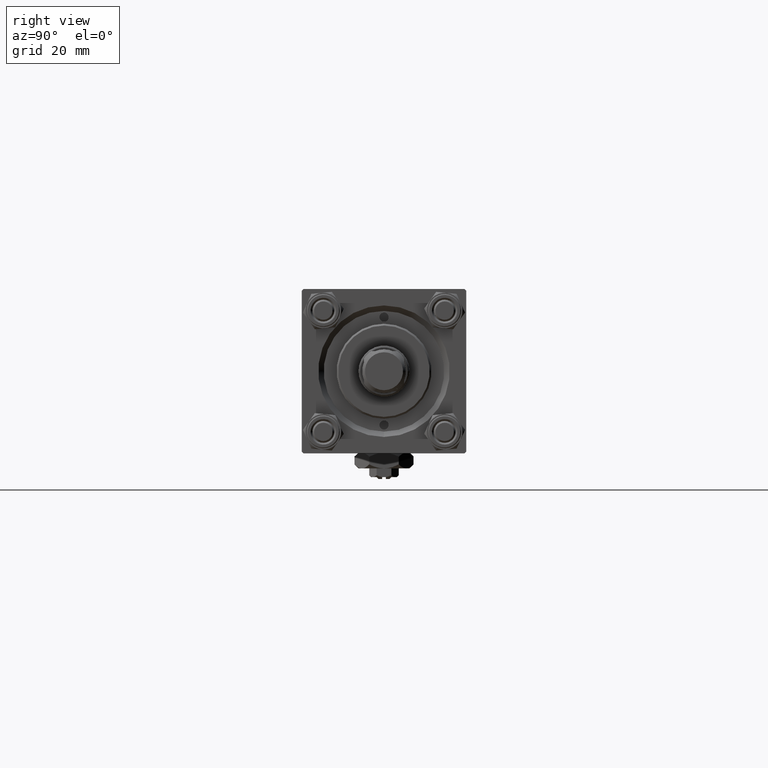
[diagram: clean part render]
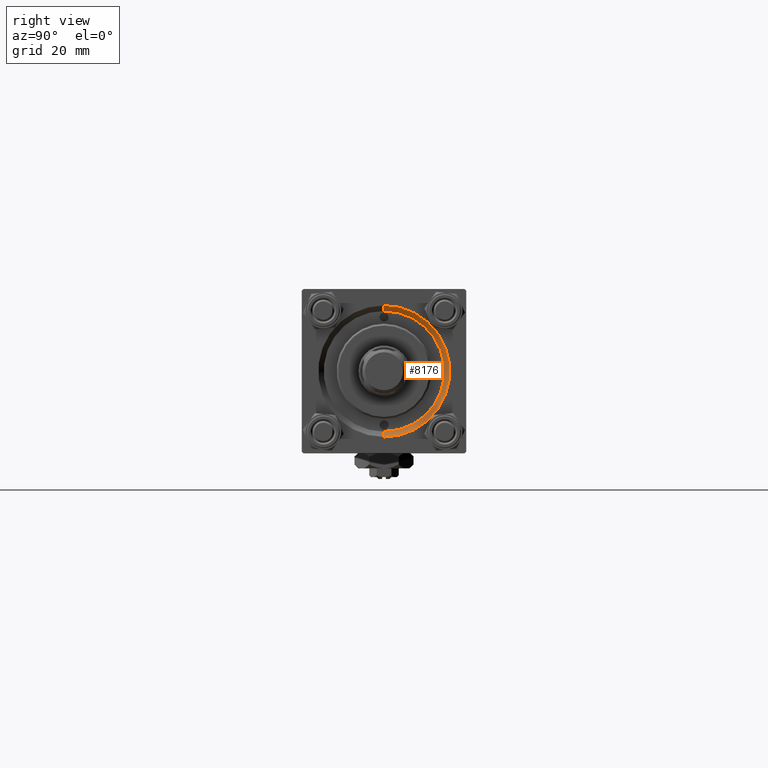
[diagram: same view with one face highlighted and labeled with its STEP entity id]
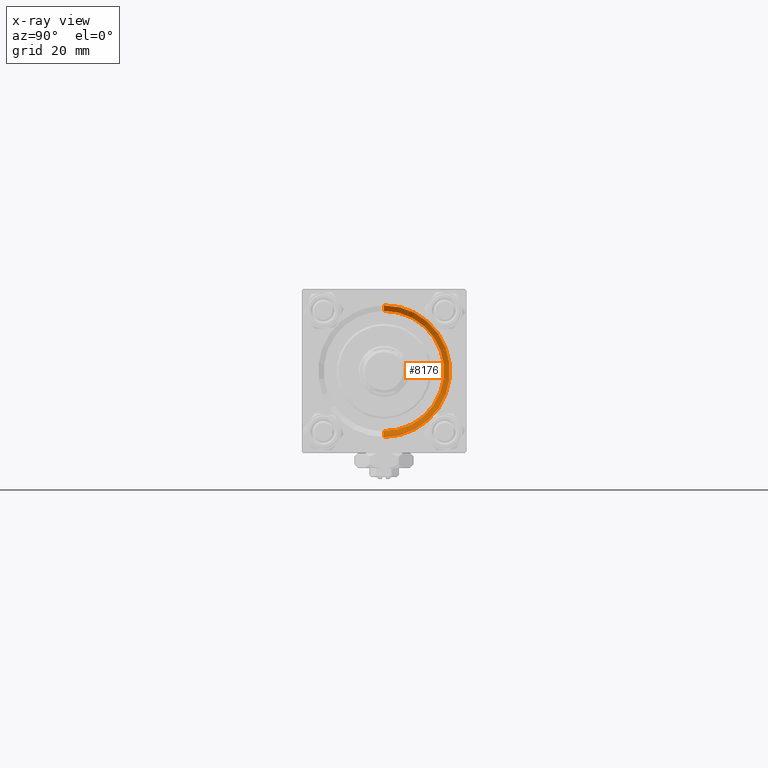
[diagram: x-ray of the same camera — body ghosted, the highlighted face saturated]
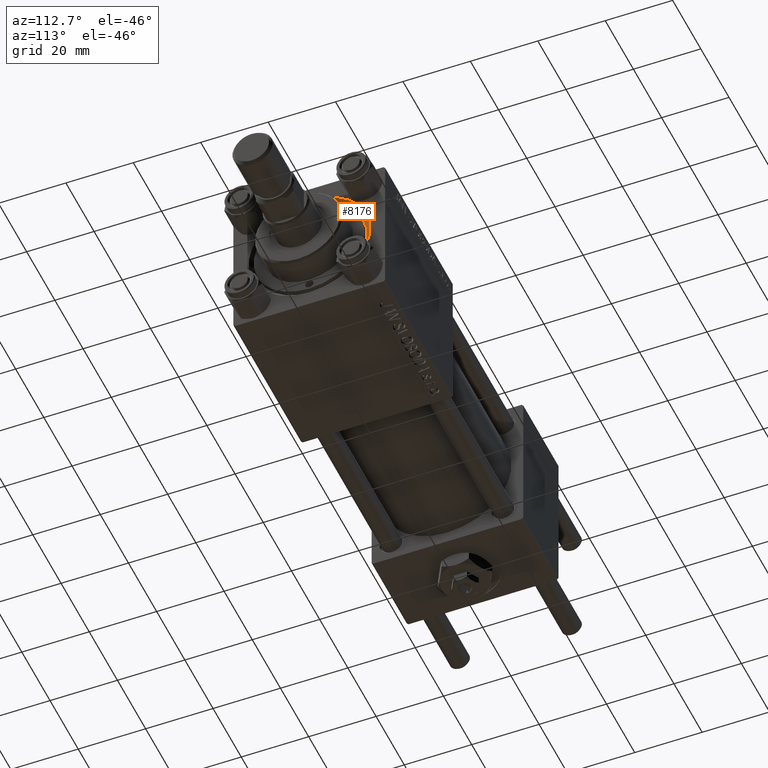
[diagram: same view with one face highlighted and labeled with its STEP entity id]
A machine part, right view. The second image highlights one B-rep face of the part: STEP entity #8176.
The next image is the same camera in x-ray: the body ghosted, the highlighted face saturated — about 0% of this face is hidden behind the body in this view.
A second angle (auxiliary view) of the same face is appended — the face is thin or edge-on in the first view.
In plain terms, the highlighted conical surface has half-angle 45 deg.
Its self-contained STEP definition (entity closure, byte-faithful):
#2337 = VERTEX_POINT ( 'NONE', #10799 ) ;
#2453 = CARTESIAN_POINT ( 'NONE',  ( 121.5000000000000142, 0.000000000000000000, -16.50000000000000000 ) ) ;
#4272 = VERTEX_POINT ( 'NONE', #21432 ) ;
#5763 = EDGE_CURVE ( 'NONE', #2337, #4272, #34906, .T. ) ;
#5941 = EDGE_CURVE ( 'NONE', #17730, #4272, #41884, .T. ) ;
#6975 = CARTESIAN_POINT ( 'NONE',  ( 123.0000000000000142, 2.204364238465235822E-15, 18.00000000000000355 ) ) ;
#7407 = FACE_OUTER_BOUND ( 'NONE', #16462, .T. ) ;
#7571 = DIRECTION ( 'NONE',  ( 1.000000000000000000, 0.000000000000000000, 0.000000000000000000 ) ) ;
#8176 = ADVANCED_FACE ( 'NONE', ( #7407 ), #12442, .F. ) ;
#10799 = CARTESIAN_POINT ( 'NONE',  ( 121.5000000000000142, 0.000000000000000000, -16.50000000000000000 ) ) ;
#11528 = VECTOR ( 'NONE', #18530, 1000.000000000000114 ) ;
#11592 = AXIS2_PLACEMENT_3D ( 'NONE', #52025, #47011, #50983 ) ;
#12442 = CONICAL_SURFACE ( 'NONE', #11592, 16.50000000000000000, 0.7853981633974482790 ) ;
#13018 = VECTOR ( 'NONE', #40596, 1000.000000000000114 ) ;
#14275 = EDGE_CURVE ( 'NONE', #2337, #32934, #44971, .T. ) ;
#15994 = DIRECTION ( 'NONE',  ( 0.000000000000000000, 0.000000000000000000, 1.000000000000000000 ) ) ;
#16077 = ORIENTED_EDGE ( 'NONE', *, *, #5763, .T. ) ;
#16462 = EDGE_LOOP ( 'NONE', ( #27416, #24528, #16077, #22326 ) ) ;
#17730 = VERTEX_POINT ( 'NONE', #6975 ) ;
#17963 = AXIS2_PLACEMENT_3D ( 'NONE', #40299, #7571, #15994 ) ;
#18530 = DIRECTION ( 'NONE',  ( 0.7071067811865474617, 0.000000000000000000, -0.7071067811865474617 ) ) ;
#21278 = LINE ( 'NONE', #29491, #13018 ) ;
#21381 = DIRECTION ( 'NONE',  ( 0.000000000000000000, 0.000000000000000000, 1.000000000000000000 ) ) ;
#21432 = CARTESIAN_POINT ( 'NONE',  ( 123.0000000000000142, 0.000000000000000000, -18.00000000000000355 ) ) ;
#22326 = ORIENTED_EDGE ( 'NONE', *, *, #5941, .F. ) ;
#23927 = EDGE_CURVE ( 'NONE', #32934, #17730, #21278, .T. ) ;
#24528 = ORIENTED_EDGE ( 'NONE', *, *, #14275, .F. ) ;
#27416 = ORIENTED_EDGE ( 'NONE', *, *, #23927, .F. ) ;
#28405 = CARTESIAN_POINT ( 'NONE',  ( 121.5000000000000142, 2.020667218593133100E-15, 16.50000000000000000 ) ) ;
#29329 = DIRECTION ( 'NONE',  ( -1.000000000000000000, 0.000000000000000000, -0.000000000000000000 ) ) ;
#29491 = CARTESIAN_POINT ( 'NONE',  ( 121.5000000000000142, 2.020667218593133100E-15, 16.50000000000000000 ) ) ;
#30079 = AXIS2_PLACEMENT_3D ( 'NONE', #41479, #29329, #21381 ) ;
#32934 = VERTEX_POINT ( 'NONE', #28405 ) ;
#34906 = LINE ( 'NONE', #2453, #11528 ) ;
#40299 = CARTESIAN_POINT ( 'NONE',  ( 121.5000000000000142, 0.000000000000000000, 0.000000000000000000 ) ) ;
#40596 = DIRECTION ( 'NONE',  ( 0.7071067811865474617, 8.659560562354932858E-17, 0.7071067811865474617 ) ) ;
#41479 = CARTESIAN_POINT ( 'NONE',  ( 123.0000000000000142, 0.000000000000000000, 0.000000000000000000 ) ) ;
#41884 = CIRCLE ( 'NONE', #30079, 18.00000000000000355 ) ;
#44971 = CIRCLE ( 'NONE', #17963, 16.50000000000000000 ) ;
#47011 = DIRECTION ( 'NONE',  ( 1.000000000000000000, 0.000000000000000000, 0.000000000000000000 ) ) ;
#50983 = DIRECTION ( 'NONE',  ( 0.000000000000000000, 0.000000000000000000, -1.000000000000000000 ) ) ;
#52025 = CARTESIAN_POINT ( 'NONE',  ( 121.5000000000000142, 0.000000000000000000, 0.000000000000000000 ) ) ;